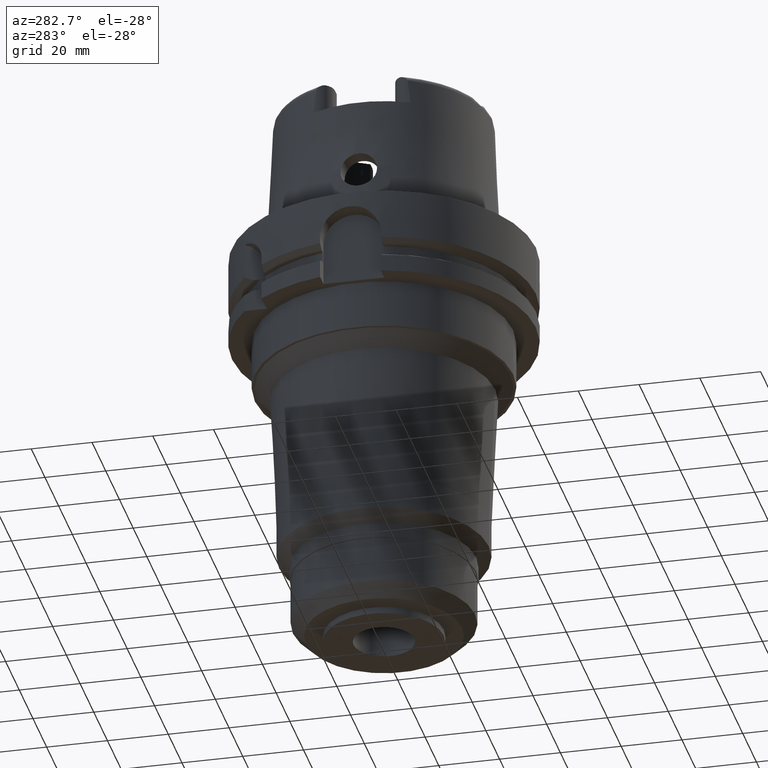
[diagram: clean part render]
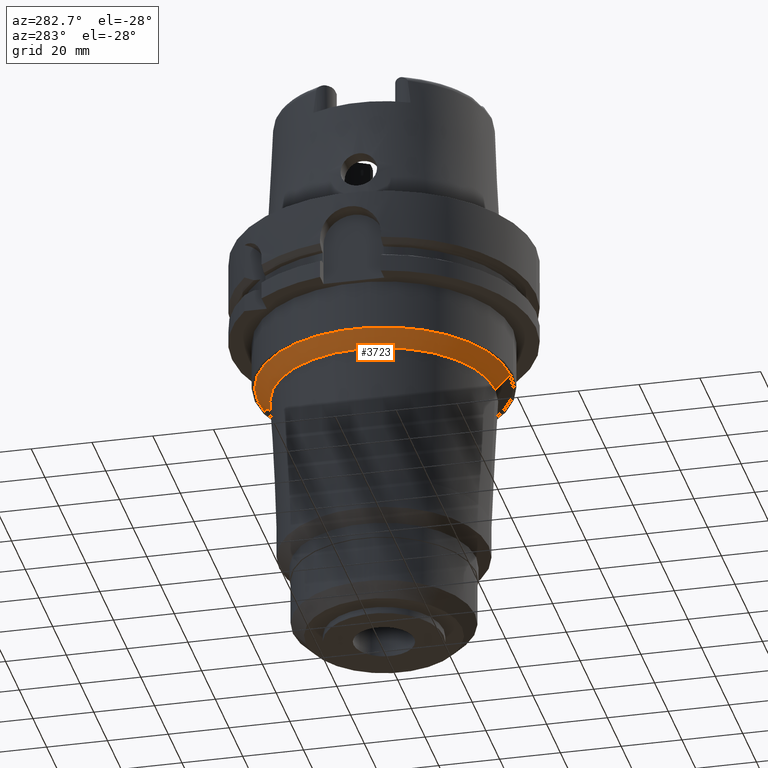
[diagram: same view with one face highlighted and labeled with its STEP entity id]
A machine part, auxiliary view. The second image highlights one B-rep face of the part: STEP entity #3723.
In plain terms, the highlighted conical surface has half-angle 45 deg.
Its self-contained STEP definition (entity closure, byte-faithful):
#1275=DIRECTION('',(0.E0,-7.071067811865E-1,-7.071067811866E-1));
#1276=VECTOR('',#1275,6.943788591251E0);
#1277=CARTESIAN_POINT('',(0.E0,4.155713238322E1,-4.509E1));
#1278=LINE('',#1277,#1276);
#1282=DIRECTION('',(0.E0,7.071067811865E-1,-7.071067811866E-1));
#1283=VECTOR('',#1282,6.943788591251E0);
#1284=CARTESIAN_POINT('',(0.E0,-4.155713238322E1,-4.509E1));
#1285=LINE('',#1284,#1283);
#1289=CARTESIAN_POINT('',(0.E0,0.E0,-5.E1));
#1290=DIRECTION('',(0.E0,0.E0,-1.E0));
#1291=DIRECTION('',(0.E0,-1.E0,0.E0));
#1292=AXIS2_PLACEMENT_3D('',#1289,#1290,#1291);
#1313=CARTESIAN_POINT('',(0.E0,0.E0,-4.509E1));
#1314=DIRECTION('',(0.E0,0.E0,-1.E0));
#1315=DIRECTION('',(0.E0,-1.E0,0.E0));
#1316=AXIS2_PLACEMENT_3D('',#1313,#1314,#1315);
#2576=CARTESIAN_POINT('',(0.E0,3.664713238322E1,-5.E1));
#2577=VERTEX_POINT('',#2576);
#2578=CARTESIAN_POINT('',(0.E0,-3.664713238322E1,-5.E1));
#2579=VERTEX_POINT('',#2578);
#2580=CARTESIAN_POINT('',(0.E0,4.155713238322E1,-4.509E1));
#2581=VERTEX_POINT('',#2580);
#2582=CARTESIAN_POINT('',(0.E0,-4.155713238322E1,-4.509E1));
#2583=VERTEX_POINT('',#2582);
#3711=CARTESIAN_POINT('',(0.E0,0.E0,-4.7545E1));
#3712=DIRECTION('',(0.E0,0.E0,1.E0));
#3713=DIRECTION('',(0.E0,1.E0,0.E0));
#3714=AXIS2_PLACEMENT_3D('',#3711,#3712,#3713);
#3715=CONICAL_SURFACE('',#3714,3.910213238322E1,4.5E1);
#3716=ORIENTED_EDGE('',*,*,#3701,.F.);
#3718=ORIENTED_EDGE('',*,*,#3717,.F.);
#3719=ORIENTED_EDGE('',*,*,#3704,.T.);
#3720=ORIENTED_EDGE('',*,*,#3675,.T.);
#3721=EDGE_LOOP('',(#3716,#3718,#3719,#3720));
#3722=FACE_OUTER_BOUND('',#3721,.F.);
#1293=CIRCLE('',#1292,3.664713238322E1);
#1317=CIRCLE('',#1316,4.155713238322E1);
#3675=EDGE_CURVE('',#2579,#2577,#1293,.T.);
#3701=EDGE_CURVE('',#2581,#2577,#1278,.T.);
#3704=EDGE_CURVE('',#2583,#2579,#1285,.T.);
#3717=EDGE_CURVE('',#2583,#2581,#1317,.T.);
#3723=ADVANCED_FACE('',(#3722),#3715,.T.);